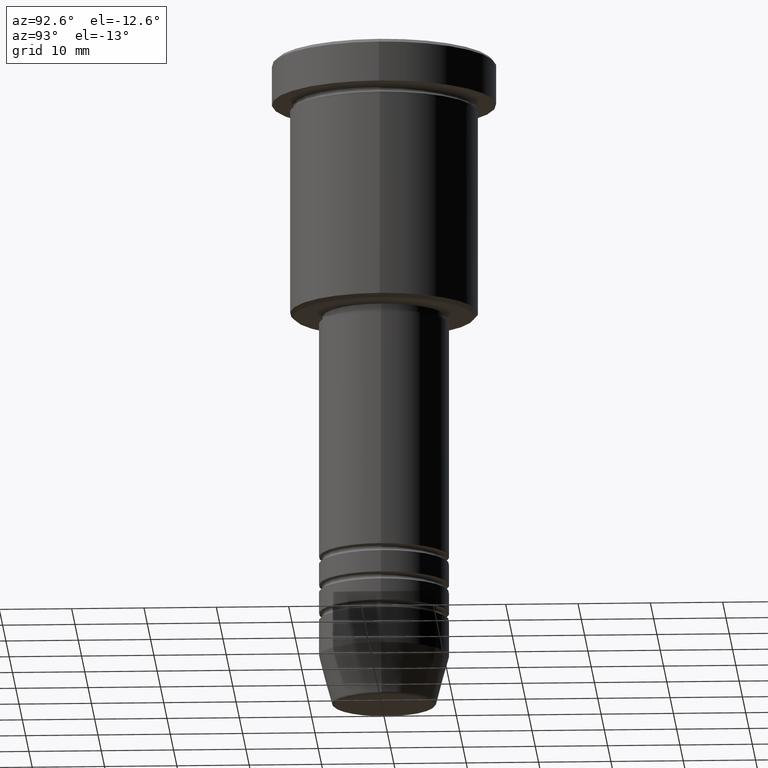
[diagram: clean part render]
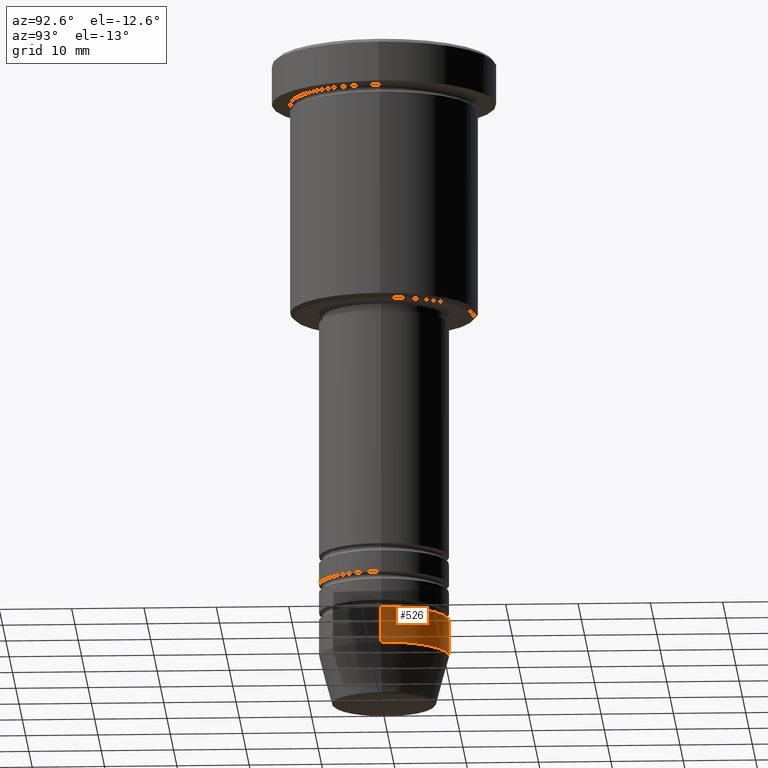
[diagram: same view with one face highlighted and labeled with its STEP entity id]
A machine part, auxiliary view. The second image highlights one B-rep face of the part: STEP entity #526.
In plain terms, the highlighted cylindrical surface (partial cylindrical patch) has radius 9 mm, axis along (-0, -0, 1).
Its self-contained STEP definition (entity closure, byte-faithful):
#27 = LINE ( 'NONE', #394, #1105 ) ;
#33 = EDGE_LOOP ( 'NONE', ( #1022, #966, #296, #528 ) ) ;
#111 = AXIS2_PLACEMENT_3D ( 'NONE', #1110, #320, #1045 ) ;
#174 = CIRCLE ( 'NONE', #1031, 9.000000000000000000 ) ;
#184 = DIRECTION ( 'NONE',  ( -0.000000000000000000, -0.000000000000000000, 1.000000000000000000 ) ) ;
#189 = CYLINDRICAL_SURFACE ( 'NONE', #993, 9.000000000000000000 ) ;
#232 = FACE_OUTER_BOUND ( 'NONE', #33, .T. ) ;
#296 = ORIENTED_EDGE ( 'NONE', *, *, #374, .F. ) ;
#320 = DIRECTION ( 'NONE',  ( -0.000000000000000000, -0.000000000000000000, 1.000000000000000000 ) ) ;
#343 = VERTEX_POINT ( 'NONE', #576 ) ;
#370 = CARTESIAN_POINT ( 'NONE',  ( -9.000000000000000000, 1.102182119232617714E-15, -78.99999999999998579 ) ) ;
#374 = EDGE_CURVE ( 'NONE', #343, #807, #174, .T. ) ;
#376 = CARTESIAN_POINT ( 'NONE',  ( 9.000000000000000000, 0.000000000000000000, 0.000000000000000000 ) ) ;
#384 = VERTEX_POINT ( 'NONE', #1040 ) ;
#391 = EDGE_CURVE ( 'NONE', #384, #418, #955, .T. ) ;
#394 = CARTESIAN_POINT ( 'NONE',  ( -9.000000000000000000, 1.102182119232617714E-15, 0.000000000000000000 ) ) ;
#418 = VERTEX_POINT ( 'NONE', #668 ) ;
#425 = VECTOR ( 'NONE', #485, 1000.000000000000000 ) ;
#485 = DIRECTION ( 'NONE',  ( -0.000000000000000000, -0.000000000000000000, 1.000000000000000000 ) ) ;
#526 = ADVANCED_FACE ( 'NONE', ( #232 ), #189, .T. ) ;
#528 = ORIENTED_EDGE ( 'NONE', *, *, #717, .F. ) ;
#554 = LINE ( 'NONE', #376, #425 ) ;
#576 = CARTESIAN_POINT ( 'NONE',  ( 9.000000000000000000, 0.000000000000000000, -78.99999999999998579 ) ) ;
#592 = CARTESIAN_POINT ( 'NONE',  ( 0.000000000000000000, 0.000000000000000000, 0.000000000000000000 ) ) ;
#668 = CARTESIAN_POINT ( 'NONE',  ( -9.000000000000000000, 1.102182119232617714E-15, -83.99999999999998579 ) ) ;
#682 = CARTESIAN_POINT ( 'NONE',  ( 0.000000000000000000, 0.000000000000000000, -78.99999999999998579 ) ) ;
#717 = EDGE_CURVE ( 'NONE', #384, #343, #554, .T. ) ;
#731 = DIRECTION ( 'NONE',  ( 1.000000000000000000, 0.000000000000000000, 0.000000000000000000 ) ) ;
#766 = EDGE_CURVE ( 'NONE', #418, #807, #27, .T. ) ;
#807 = VERTEX_POINT ( 'NONE', #370 ) ;
#829 = DIRECTION ( 'NONE',  ( 1.000000000000000000, 0.000000000000000000, 0.000000000000000000 ) ) ;
#955 = CIRCLE ( 'NONE', #111, 9.000000000000000000 ) ;
#966 = ORIENTED_EDGE ( 'NONE', *, *, #766, .T. ) ;
#993 = AXIS2_PLACEMENT_3D ( 'NONE', #592, #1043, #731 ) ;
#1022 = ORIENTED_EDGE ( 'NONE', *, *, #391, .T. ) ;
#1031 = AXIS2_PLACEMENT_3D ( 'NONE', #682, #1134, #829 ) ;
#1040 = CARTESIAN_POINT ( 'NONE',  ( 9.000000000000000000, 0.000000000000000000, -83.99999999999998579 ) ) ;
#1043 = DIRECTION ( 'NONE',  ( -0.000000000000000000, -0.000000000000000000, 1.000000000000000000 ) ) ;
#1045 = DIRECTION ( 'NONE',  ( 1.000000000000000000, 0.000000000000000000, 0.000000000000000000 ) ) ;
#1105 = VECTOR ( 'NONE', #184, 1000.000000000000000 ) ;
#1110 = CARTESIAN_POINT ( 'NONE',  ( 0.000000000000000000, 0.000000000000000000, -83.99999999999998579 ) ) ;
#1134 = DIRECTION ( 'NONE',  ( -0.000000000000000000, -0.000000000000000000, 1.000000000000000000 ) ) ;